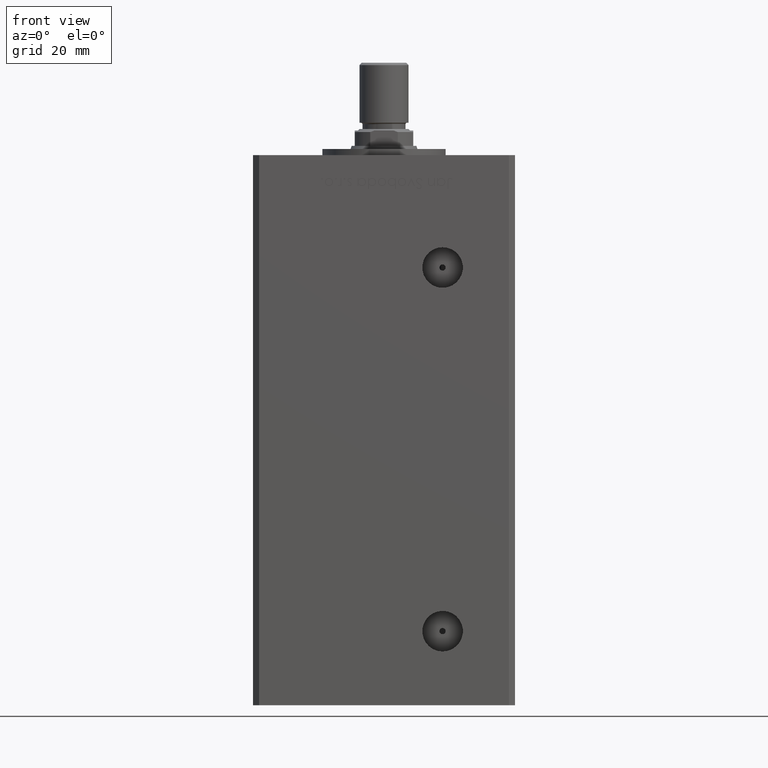
[diagram: clean part render]
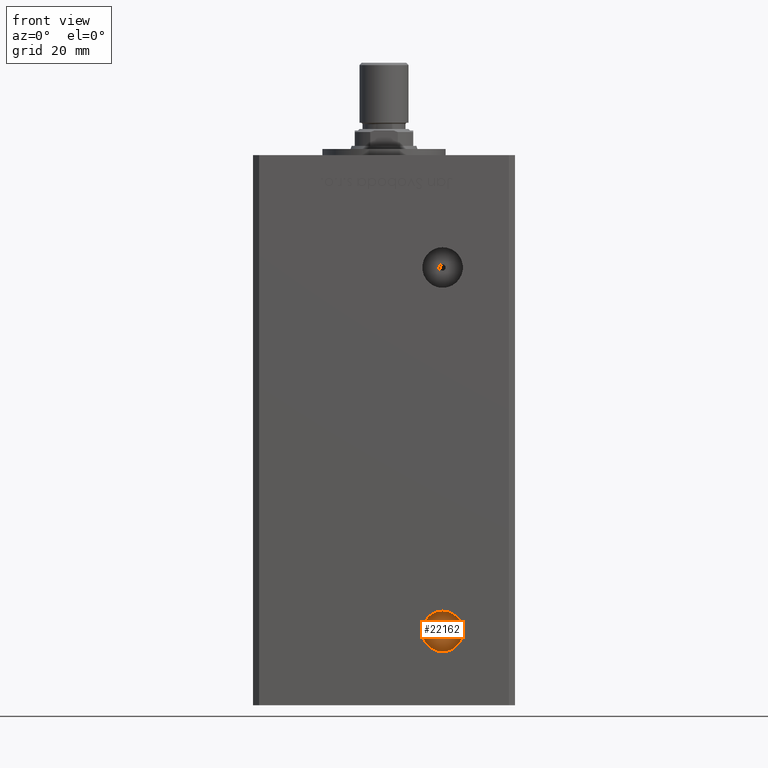
[diagram: same view with one face highlighted and labeled with its STEP entity id]
A machine part, front view. The second image highlights one B-rep face of the part: STEP entity #22162.
In plain terms, the highlighted planar face has unit normal (0, -1, 0).
Its self-contained STEP definition (entity closure, byte-faithful):
#496 = EDGE_LOOP ( 'NONE', ( #16078, #4100 ) ) ;
#1527 = EDGE_CURVE ( 'NONE', #7812, #6272, #47447, .T. ) ;
#3006 = DIRECTION ( 'NONE',  ( 0.000000000000000000, 0.000000000000000000, -1.000000000000000000 ) ) ;
#4100 = ORIENTED_EDGE ( 'NONE', *, *, #18030, .F. ) ;
#5131 = AXIS2_PLACEMENT_3D ( 'NONE', #42275, #14929, #19683 ) ;
#5317 = CIRCLE ( 'NONE', #24810, 1.000000000000000888 ) ;
#5504 = CIRCLE ( 'NONE', #17360, 1.000000000000000888 ) ;
#6272 = VERTEX_POINT ( 'NONE', #16412 ) ;
#7812 = VERTEX_POINT ( 'NONE', #31726 ) ;
#9159 = DIRECTION ( 'NONE',  ( 0.000000000000000000, 0.000000000000000000, -1.000000000000000000 ) ) ;
#9330 = AXIS2_PLACEMENT_3D ( 'NONE', #10692, #34591, #3006 ) ;
#10692 = CARTESIAN_POINT ( 'NONE',  ( 18.99999999999998934, -24.50000000000000711, 9.000000000000007105 ) ) ;
#12363 = DIRECTION ( 'NONE',  ( 0.000000000000000000, -0.000000000000000000, -1.000000000000000000 ) ) ;
#13135 = CARTESIAN_POINT ( 'NONE',  ( 18.99999999999998934, -24.50000000000000711, 9.000000000000007105 ) ) ;
#13157 = FACE_OUTER_BOUND ( 'NONE', #32401, .T. ) ;
#13558 = CARTESIAN_POINT ( 'NONE',  ( 18.99999999999998934, -24.50000000000000711, 8.000000000000007105 ) ) ;
#14929 = DIRECTION ( 'NONE',  ( 0.000000000000000000, -1.000000000000000000, 0.000000000000000000 ) ) ;
#15193 = DIRECTION ( 'NONE',  ( 0.000000000000000000, 0.000000000000000000, -1.000000000000000000 ) ) ;
#16078 = ORIENTED_EDGE ( 'NONE', *, *, #48313, .F. ) ;
#16412 = CARTESIAN_POINT ( 'NONE',  ( 18.99999999999998934, -24.50000000000000711, 15.58000000000000718 ) ) ;
#16610 = CARTESIAN_POINT ( 'NONE',  ( 18.99999999999998934, -24.50000000000000711, 9.000000000000007105 ) ) ;
#17360 = AXIS2_PLACEMENT_3D ( 'NONE', #13135, #45499, #9159 ) ;
#17664 = ORIENTED_EDGE ( 'NONE', *, *, #1527, .T. ) ;
#18030 = EDGE_CURVE ( 'NONE', #35388, #26812, #5504, .T. ) ;
#18406 = DIRECTION ( 'NONE',  ( 0.000000000000000000, -1.000000000000000000, 0.000000000000000000 ) ) ;
#19683 = DIRECTION ( 'NONE',  ( 0.000000000000000000, 0.000000000000000000, -1.000000000000000000 ) ) ;
#20828 = AXIS2_PLACEMENT_3D ( 'NONE', #16610, #33067, #12363 ) ;
#22162 = ADVANCED_FACE ( 'NONE', ( #48186, #13157 ), #28827, .T. ) ;
#24810 = AXIS2_PLACEMENT_3D ( 'NONE', #35130, #18406, #15193 ) ;
#26812 = VERTEX_POINT ( 'NONE', #13558 ) ;
#28827 = PLANE ( 'NONE',  #20828 ) ;
#31726 = CARTESIAN_POINT ( 'NONE',  ( 18.99999999999998934, -24.50000000000000711, 2.420000000000009699 ) ) ;
#32401 = EDGE_LOOP ( 'NONE', ( #17664, #42845 ) ) ;
#33067 = DIRECTION ( 'NONE',  ( 0.000000000000000000, -1.000000000000000000, 0.000000000000000000 ) ) ;
#33811 = CARTESIAN_POINT ( 'NONE',  ( 18.99999999999998934, -24.50000000000000711, 10.00000000000000888 ) ) ;
#34569 = EDGE_CURVE ( 'NONE', #6272, #7812, #49113, .T. ) ;
#34591 = DIRECTION ( 'NONE',  ( 0.000000000000000000, -1.000000000000000000, 0.000000000000000000 ) ) ;
#35130 = CARTESIAN_POINT ( 'NONE',  ( 18.99999999999998934, -24.50000000000000711, 9.000000000000007105 ) ) ;
#35388 = VERTEX_POINT ( 'NONE', #33811 ) ;
#42275 = CARTESIAN_POINT ( 'NONE',  ( 18.99999999999998934, -24.50000000000000711, 9.000000000000007105 ) ) ;
#42845 = ORIENTED_EDGE ( 'NONE', *, *, #34569, .T. ) ;
#45499 = DIRECTION ( 'NONE',  ( 0.000000000000000000, -1.000000000000000000, 0.000000000000000000 ) ) ;
#47447 = CIRCLE ( 'NONE', #5131, 6.579999999999998295 ) ;
#48186 = FACE_BOUND ( 'NONE', #496, .T. ) ;
#48313 = EDGE_CURVE ( 'NONE', #26812, #35388, #5317, .T. ) ;
#49113 = CIRCLE ( 'NONE', #9330, 6.579999999999998295 ) ;